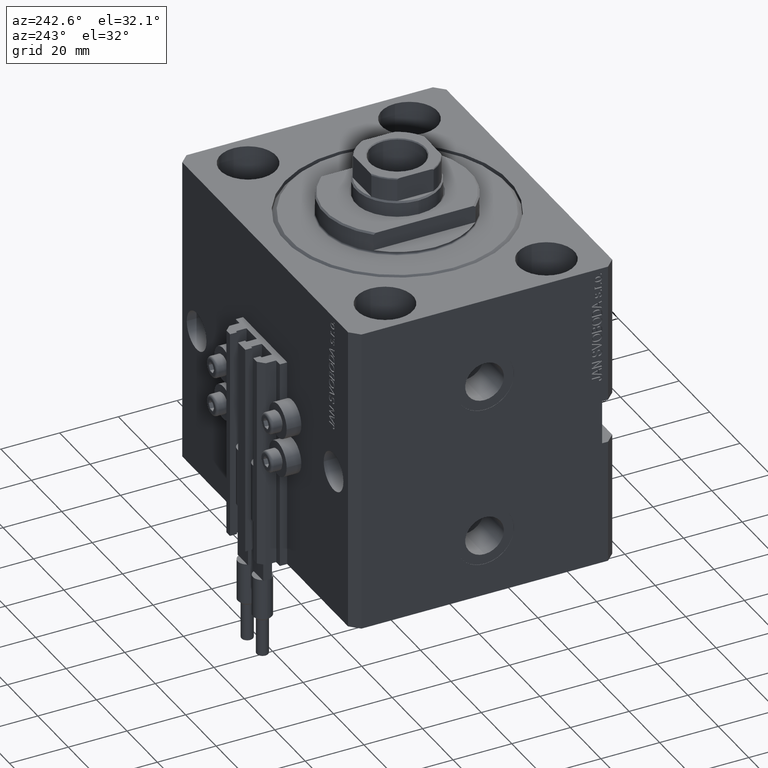
[diagram: clean part render]
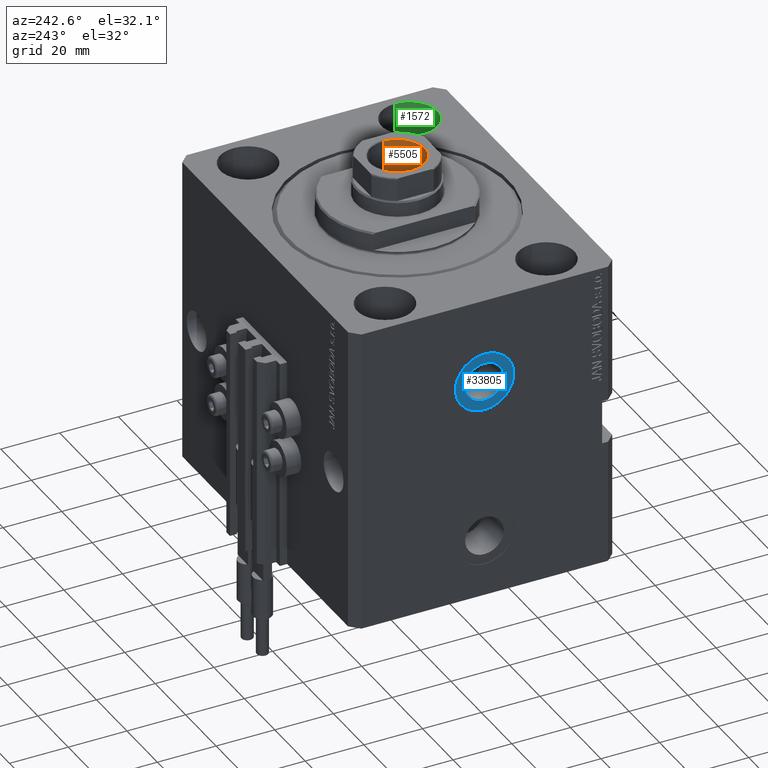
[diagram: same view with three faces highlighted in distinct colors, each labeled with its STEP entity id]
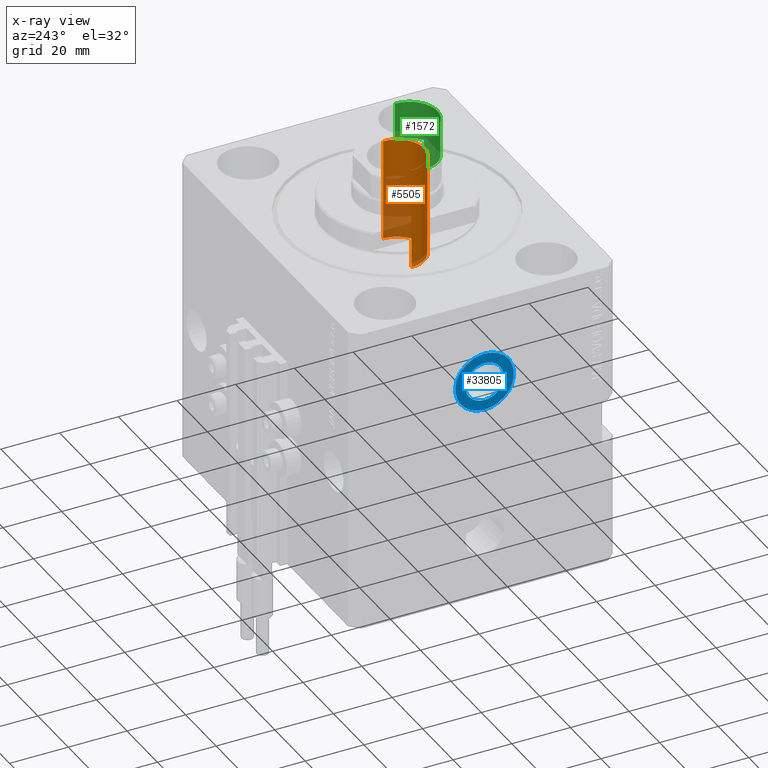
[diagram: x-ray of the same camera — body ghosted, the three highlighted faces saturated]
A machine part, auxiliary view with three faces highlighted in distinct colors.
The next image is the same camera in x-ray (body ghosted, the three faces saturated) — at least one of them is partly hidden behind the body in this view.
Their STEP definitions:

[orange] entity #5505 — the highlighted cylindrical surface (edge-blend (fillet) strip) has radius 9.25 mm, axis along (0, 0, 1).
#3746 = VERTEX_POINT ( 'NONE', #5225 ) ;
#3800 = DIRECTION ( 'NONE',  ( -0.000000000000000000, -0.000000000000000000, 1.000000000000000000 ) ) ;
#5225 = CARTESIAN_POINT ( 'NONE',  ( 9.249999999999994671, 0.000000000000000000, 72.09999999999999432 ) ) ;
#5505 = ADVANCED_FACE ( 'NONE', ( #44827 ), #45575, .F. ) ;
#6883 = CARTESIAN_POINT ( 'NONE',  ( 0.000000000000000000, 0.000000000000000000, 107.0999999999999943 ) ) ;
#12064 = CARTESIAN_POINT ( 'NONE',  ( -9.249999999999994671, 1.132798289211300909E-15, 72.09999999999999432 ) ) ;
#13866 = LINE ( 'NONE', #44738, #25960 ) ;
#16507 = VERTEX_POINT ( 'NONE', #40981 ) ;
#16801 = EDGE_CURVE ( 'NONE', #3746, #29071, #13866, .T. ) ;
#17184 = AXIS2_PLACEMENT_3D ( 'NONE', #28520, #17609, #47485 ) ;
#17519 = ORIENTED_EDGE ( 'NONE', *, *, #22663, .F. ) ;
#17609 = DIRECTION ( 'NONE',  ( 0.000000000000000000, 0.000000000000000000, 1.000000000000000000 ) ) ;
#18801 = AXIS2_PLACEMENT_3D ( 'NONE', #34393, #3800, #42489 ) ;
#22663 = EDGE_CURVE ( 'NONE', #26966, #3746, #22814, .T. ) ;
#22801 = DIRECTION ( 'NONE',  ( 1.000000000000000000, 0.000000000000000000, 0.000000000000000000 ) ) ;
#22814 = CIRCLE ( 'NONE', #18801, 9.249999999999994671 ) ;
#23009 = EDGE_CURVE ( 'NONE', #16507, #29071, #42211, .T. ) ;
#23471 = EDGE_CURVE ( 'NONE', #26966, #16507, #40805, .T. ) ;
#24870 = ORIENTED_EDGE ( 'NONE', *, *, #16801, .F. ) ;
#25960 = VECTOR ( 'NONE', #40923, 1000.000000000000000 ) ;
#26966 = VERTEX_POINT ( 'NONE', #12064 ) ;
#28520 = CARTESIAN_POINT ( 'NONE',  ( 0.000000000000000000, 0.000000000000000000, 106.7999999999999972 ) ) ;
#28534 = ORIENTED_EDGE ( 'NONE', *, *, #23009, .T. ) ;
#29071 = VERTEX_POINT ( 'NONE', #43836 ) ;
#30940 = VECTOR ( 'NONE', #49153, 1000.000000000000000 ) ;
#33095 = AXIS2_PLACEMENT_3D ( 'NONE', #6883, #33669, #22801 ) ;
#33669 = DIRECTION ( 'NONE',  ( -0.000000000000000000, -0.000000000000000000, 1.000000000000000000 ) ) ;
#34393 = CARTESIAN_POINT ( 'NONE',  ( 0.000000000000000000, 0.000000000000000000, 72.09999999999999432 ) ) ;
#40805 = LINE ( 'NONE', #45366, #30940 ) ;
#40923 = DIRECTION ( 'NONE',  ( -0.000000000000000000, -0.000000000000000000, 1.000000000000000000 ) ) ;
#40981 = CARTESIAN_POINT ( 'NONE',  ( -9.249999999999996447, 1.132798289211301304E-15, 106.7999999999999972 ) ) ;
#42211 = CIRCLE ( 'NONE', #17184, 9.249999999999996447 ) ;
#42489 = DIRECTION ( 'NONE',  ( 1.000000000000000000, 0.000000000000000000, 0.000000000000000000 ) ) ;
#42931 = EDGE_LOOP ( 'NONE', ( #17519, #43540, #28534, #24870 ) ) ;
#43540 = ORIENTED_EDGE ( 'NONE', *, *, #23471, .T. ) ;
#43836 = CARTESIAN_POINT ( 'NONE',  ( 9.249999999999996447, 0.000000000000000000, 106.7999999999999972 ) ) ;
#44738 = CARTESIAN_POINT ( 'NONE',  ( 9.249999999999996447, 0.000000000000000000, 107.0999999999999943 ) ) ;
#44827 = FACE_OUTER_BOUND ( 'NONE', #42931, .T. ) ;
#45366 = CARTESIAN_POINT ( 'NONE',  ( -9.249999999999996447, 1.132798289211301304E-15, 107.0999999999999943 ) ) ;
#45575 = CYLINDRICAL_SURFACE ( 'NONE', #33095, 9.249999999999996447 ) ;
#47485 = DIRECTION ( 'NONE',  ( 1.000000000000000000, 0.000000000000000000, 0.000000000000000000 ) ) ;
#49153 = DIRECTION ( 'NONE',  ( -0.000000000000000000, -0.000000000000000000, 1.000000000000000000 ) ) ;

[blue] entity #33805 — the highlighted planar face has unit normal (-1, 0, 0).
#1003 = AXIS2_PLACEMENT_3D ( 'NONE', #34266, #49459, #10242 ) ;
#1347 = DIRECTION ( 'NONE',  ( 0.000000000000000000, 0.000000000000000000, 1.000000000000000000 ) ) ;
#2007 = AXIS2_PLACEMENT_3D ( 'NONE', #23757, #16177, #23499 ) ;
#2250 = VERTEX_POINT ( 'NONE', #8733 ) ;
#2579 = CARTESIAN_POINT ( 'NONE',  ( -57.39999999999999147, 8.116437956884069019E-15, -35.57999999999999829 ) ) ;
#3869 = ORIENTED_EDGE ( 'NONE', *, *, #46895, .T. ) ;
#5657 = CIRCLE ( 'NONE', #33908, 9.999999999999998224 ) ;
#7469 = DIRECTION ( 'NONE',  ( 0.000000000000000000, 0.000000000000000000, 1.000000000000000000 ) ) ;
#7606 = FACE_BOUND ( 'NONE', #29618, .T. ) ;
#7845 = DIRECTION ( 'NONE',  ( -1.000000000000000000, 0.000000000000000000, 0.000000000000000000 ) ) ;
#8733 = CARTESIAN_POINT ( 'NONE',  ( -57.39999999999999147, 7.310620363045111555E-15, -19.00000000000000355 ) ) ;
#10242 = DIRECTION ( 'NONE',  ( 0.000000000000000000, 0.000000000000000000, 1.000000000000000000 ) ) ;
#13023 = EDGE_LOOP ( 'NONE', ( #35026, #3869 ) ) ;
#13220 = VERTEX_POINT ( 'NONE', #37930 ) ;
#15079 = CARTESIAN_POINT ( 'NONE',  ( -57.39999999999999147, 8.535267162192464614E-15, -39.00000000000000000 ) ) ;
#15810 = EDGE_CURVE ( 'NONE', #2250, #48585, #22195, .T. ) ;
#16177 = DIRECTION ( 'NONE',  ( -1.000000000000000000, 0.000000000000000000, 0.000000000000000000 ) ) ;
#19438 = ORIENTED_EDGE ( 'NONE', *, *, #21936, .F. ) ;
#20547 = DIRECTION ( 'NONE',  ( -1.000000000000000000, 0.000000000000000000, 0.000000000000000000 ) ) ;
#21928 = EDGE_CURVE ( 'NONE', #13220, #46992, #49469, .T. ) ;
#21936 = EDGE_CURVE ( 'NONE', #46992, #13220, #27676, .T. ) ;
#22195 = CIRCLE ( 'NONE', #2007, 9.999999999999998224 ) ;
#22524 = PLANE ( 'NONE',  #26418 ) ;
#22780 = DIRECTION ( 'NONE',  ( 0.000000000000000000, 0.000000000000000000, 1.000000000000000000 ) ) ;
#23499 = DIRECTION ( 'NONE',  ( 0.000000000000000000, 0.000000000000000000, 1.000000000000000000 ) ) ;
#23757 = CARTESIAN_POINT ( 'NONE',  ( -57.39999999999999147, 7.310620363045111555E-15, -29.00000000000000000 ) ) ;
#26418 = AXIS2_PLACEMENT_3D ( 'NONE', #26830, #7845, #22780 ) ;
#26830 = CARTESIAN_POINT ( 'NONE',  ( -57.39999999999999147, 7.310620363045111555E-15, -29.00000000000000000 ) ) ;
#27676 = CIRCLE ( 'NONE', #46213, 6.579999999999999183 ) ;
#28111 = ORIENTED_EDGE ( 'NONE', *, *, #21928, .F. ) ;
#29618 = EDGE_LOOP ( 'NONE', ( #28111, #19438 ) ) ;
#30735 = DIRECTION ( 'NONE',  ( -1.000000000000000000, 0.000000000000000000, 0.000000000000000000 ) ) ;
#32434 = CARTESIAN_POINT ( 'NONE',  ( -57.39999999999999147, 7.310620363045111555E-15, -29.00000000000000000 ) ) ;
#33805 = ADVANCED_FACE ( 'NONE', ( #7606, #45800 ), #22524, .T. ) ;
#33908 = AXIS2_PLACEMENT_3D ( 'NONE', #32434, #20547, #1347 ) ;
#34266 = CARTESIAN_POINT ( 'NONE',  ( -57.39999999999999147, 7.310620363045111555E-15, -29.00000000000000000 ) ) ;
#35026 = ORIENTED_EDGE ( 'NONE', *, *, #15810, .T. ) ;
#37930 = CARTESIAN_POINT ( 'NONE',  ( -57.39999999999999147, 7.310620363045111555E-15, -22.42000000000000171 ) ) ;
#42120 = CARTESIAN_POINT ( 'NONE',  ( -57.39999999999999147, 7.310620363045111555E-15, -29.00000000000000000 ) ) ;
#45800 = FACE_OUTER_BOUND ( 'NONE', #13023, .T. ) ;
#46213 = AXIS2_PLACEMENT_3D ( 'NONE', #42120, #30735, #7469 ) ;
#46895 = EDGE_CURVE ( 'NONE', #48585, #2250, #5657, .T. ) ;
#46992 = VERTEX_POINT ( 'NONE', #2579 ) ;
#48585 = VERTEX_POINT ( 'NONE', #15079 ) ;
#49459 = DIRECTION ( 'NONE',  ( -1.000000000000000000, 0.000000000000000000, 0.000000000000000000 ) ) ;
#49469 = CIRCLE ( 'NONE', #1003, 6.579999999999999183 ) ;

[green] entity #1572 — the highlighted cylindrical surface (edge-blend (fillet) strip) has radius 9.5 mm, axis along (0, 0, 1).
#318 = LINE ( 'NONE', #12435, #20126 ) ;
#518 = ORIENTED_EDGE ( 'NONE', *, *, #39295, .F. ) ;
#1572 = ADVANCED_FACE ( 'NONE', ( #42337 ), #10722, .F. ) ;
#2270 = CIRCLE ( 'NONE', #30537, 9.500000000000001776 ) ;
#4704 = EDGE_CURVE ( 'NONE', #15968, #41552, #22371, .T. ) ;
#4961 = EDGE_LOOP ( 'NONE', ( #518, #13374, #10962, #16257 ) ) ;
#8015 = DIRECTION ( 'NONE',  ( 1.000000000000000000, 0.000000000000000000, 0.000000000000000000 ) ) ;
#10498 = EDGE_CURVE ( 'NONE', #41552, #18227, #30797, .T. ) ;
#10617 = CARTESIAN_POINT ( 'NONE',  ( 54.50000000000000000, -27.49999999999999645, 0.000000000000000000 ) ) ;
#10722 = CYLINDRICAL_SURFACE ( 'NONE', #22483, 9.500000000000001776 ) ;
#10962 = ORIENTED_EDGE ( 'NONE', *, *, #10498, .T. ) ;
#11988 = VERTEX_POINT ( 'NONE', #33134 ) ;
#12435 = CARTESIAN_POINT ( 'NONE',  ( 54.50000000000000000, -27.49999999999999645, -13.00000000000000000 ) ) ;
#13374 = ORIENTED_EDGE ( 'NONE', *, *, #4704, .T. ) ;
#14771 = DIRECTION ( 'NONE',  ( -0.000000000000000000, -0.000000000000000000, 1.000000000000000000 ) ) ;
#15968 = VERTEX_POINT ( 'NONE', #40678 ) ;
#16257 = ORIENTED_EDGE ( 'NONE', *, *, #44264, .F. ) ;
#18227 = VERTEX_POINT ( 'NONE', #10617 ) ;
#20126 = VECTOR ( 'NONE', #46096, 1000.000000000000000 ) ;
#22371 = LINE ( 'NONE', #37298, #31484 ) ;
#22483 = AXIS2_PLACEMENT_3D ( 'NONE', #41828, #14771, #29703 ) ;
#22952 = DIRECTION ( 'NONE',  ( 0.000000000000000000, 0.000000000000000000, 1.000000000000000000 ) ) ;
#23195 = CARTESIAN_POINT ( 'NONE',  ( 45.00000000000000000, -27.49999999999999645, 0.000000000000000000 ) ) ;
#28479 = DIRECTION ( 'NONE',  ( 1.000000000000000000, 0.000000000000000000, 0.000000000000000000 ) ) ;
#29703 = DIRECTION ( 'NONE',  ( 1.000000000000000000, 0.000000000000000000, 0.000000000000000000 ) ) ;
#30537 = AXIS2_PLACEMENT_3D ( 'NONE', #44641, #36048, #28479 ) ;
#30797 = CIRCLE ( 'NONE', #47768, 9.500000000000001776 ) ;
#31317 = CARTESIAN_POINT ( 'NONE',  ( 35.50000000000000000, -27.49999999999999645, 0.000000000000000000 ) ) ;
#31484 = VECTOR ( 'NONE', #37798, 1000.000000000000000 ) ;
#33134 = CARTESIAN_POINT ( 'NONE',  ( 54.50000000000000000, -27.49999999999999645, -13.00000000000000000 ) ) ;
#36048 = DIRECTION ( 'NONE',  ( 0.000000000000000000, 0.000000000000000000, 1.000000000000000000 ) ) ;
#37298 = CARTESIAN_POINT ( 'NONE',  ( 35.50000000000000000, -27.49999999999999645, -13.00000000000000000 ) ) ;
#37798 = DIRECTION ( 'NONE',  ( -0.000000000000000000, -0.000000000000000000, 1.000000000000000000 ) ) ;
#39295 = EDGE_CURVE ( 'NONE', #15968, #11988, #2270, .T. ) ;
#40678 = CARTESIAN_POINT ( 'NONE',  ( 35.50000000000000000, -27.49999999999999645, -13.00000000000000000 ) ) ;
#41552 = VERTEX_POINT ( 'NONE', #31317 ) ;
#41828 = CARTESIAN_POINT ( 'NONE',  ( 45.00000000000000000, -27.49999999999999645, -13.00000000000000000 ) ) ;
#42337 = FACE_OUTER_BOUND ( 'NONE', #4961, .T. ) ;
#44264 = EDGE_CURVE ( 'NONE', #11988, #18227, #318, .T. ) ;
#44641 = CARTESIAN_POINT ( 'NONE',  ( 45.00000000000000000, -27.49999999999999645, -13.00000000000000000 ) ) ;
#46096 = DIRECTION ( 'NONE',  ( -0.000000000000000000, -0.000000000000000000, 1.000000000000000000 ) ) ;
#47768 = AXIS2_PLACEMENT_3D ( 'NONE', #23195, #22952, #8015 ) ;